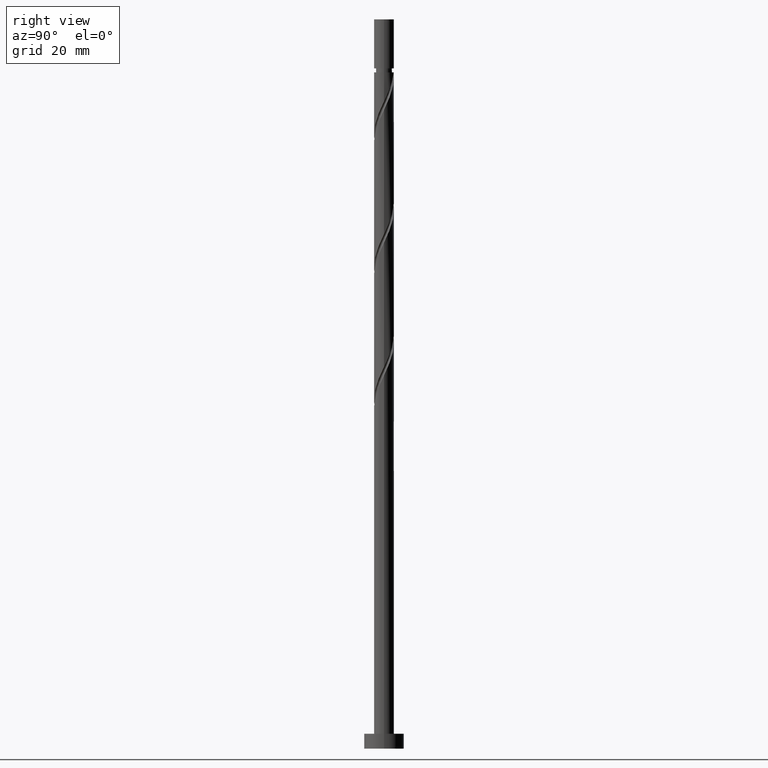
[diagram: clean part render]
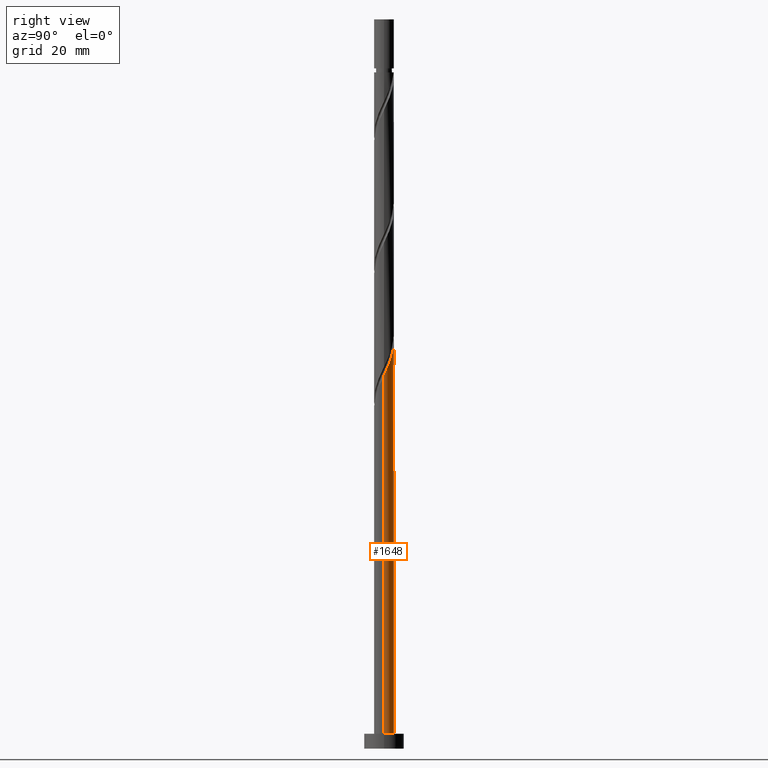
[diagram: same view with one face highlighted and labeled with its STEP entity id]
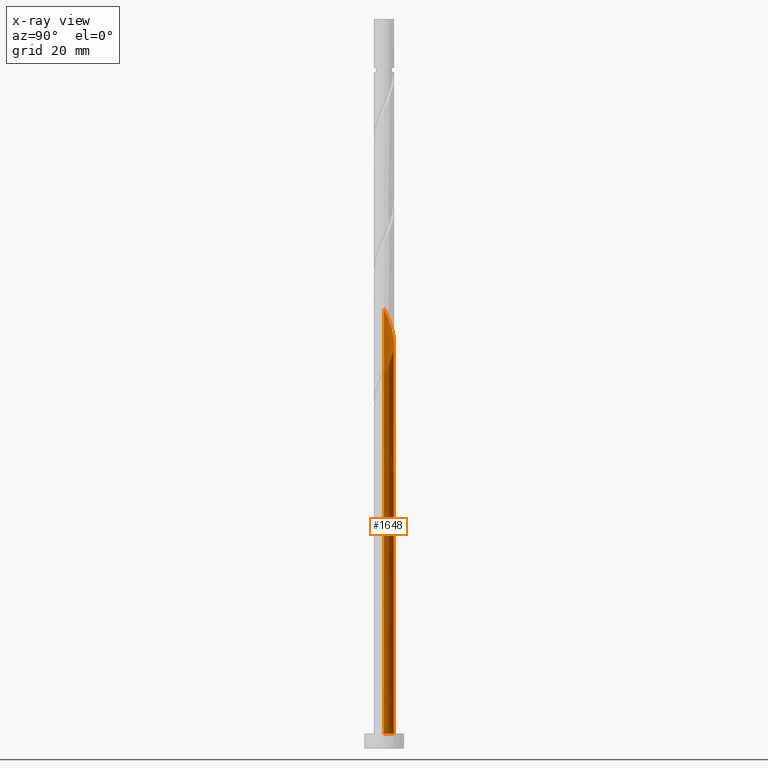
[diagram: x-ray of the same camera — body ghosted, the highlighted face saturated]
A machine part, right view. The second image highlights one B-rep face of the part: STEP entity #1648.
The next image is the same camera in x-ray: the body ghosted, the highlighted face saturated — about 0% of this face is hidden behind the body in this view.
In plain terms, the highlighted cylindrical surface (edge-blend (fillet) strip) has radius 2 mm, axis along (-0, -0, -1).
Its self-contained STEP definition (entity closure, byte-faithful):
#3 = CARTESIAN_POINT ( 'NONE',  ( 0.3979949748426483969, 1.959999999999999298, 55.84378238153818330 ) ) ;
#7 = AXIS2_PLACEMENT_3D ( 'NONE', #675, #49, #796 ) ;
#34 = ORIENTED_EDGE ( 'NONE', *, *, #282, .F. ) ;
#47 = ORIENTED_EDGE ( 'NONE', *, *, #341, .F. ) ;
#49 = DIRECTION ( 'NONE',  ( 0.000000000000000000, -0.000000000000000000, -1.000000000000000000 ) ) ;
#86 = CARTESIAN_POINT ( 'NONE',  ( -1.394470680848407529, 1.433684595806968387, 58.26802480578059118 ) ) ;
#92 = CARTESIAN_POINT ( 'NONE',  ( -0.9340691933046022521, 1.768478086411957584, 57.05590359365938724 ) ) ;
#94 = ORIENTED_EDGE ( 'NONE', *, *, #1174, .F. ) ;
#107 = LINE ( 'NONE', #480, #342 ) ;
#109 = VERTEX_POINT ( 'NONE', #1031 ) ;
#116 = CARTESIAN_POINT ( 'NONE',  ( -0.9340691933046022521, 1.768478086411957584, 83.72257026032605154 ) ) ;
#123 = CARTESIAN_POINT ( 'NONE',  ( 0.4568343776401070366, 1.968245701812304072, 80.69226723002302037 ) ) ;
#129 = CARTESIAN_POINT ( 'NONE',  ( -1.448427499289741682, 1.408810338760219993, 60.08620662396241130 ) ) ;
#135 = CARTESIAN_POINT ( 'NONE',  ( -0.9928482695149674075, 1.759812803970227879, 58.87408541184121447 ) ) ;
#146 = CIRCLE ( 'NONE', #1649, 2.000000000000000000 ) ;
#160 = CARTESIAN_POINT ( 'NONE',  ( -0.4568343776401058709, 1.968245701812301851, 57.66196419971999632 ) ) ;
#234 = CARTESIAN_POINT ( 'NONE',  ( 1.448427499289745235, 1.408810338760220882, 78.26802480578059829 ) ) ;
#252 = CARTESIAN_POINT ( 'NONE',  ( -1.883197487972274375, 0.7322950311120159927, 86.75287329062906849 ) ) ;
#262 = EDGE_CURVE ( 'NONE', #753, #1122, #146, .T. ) ;
#266 = DIRECTION ( 'NONE',  ( -1.000000000000000000, 0.000000000000000000, 0.000000000000000000 ) ) ;
#282 = EDGE_CURVE ( 'NONE', #1252, #1439, #107, .T. ) ;
#284 = CARTESIAN_POINT ( 'NONE',  ( -1.220637884402354656, 1.584311571365223825, 59.48014601790183065 ) ) ;
#324 = CARTESIAN_POINT ( 'NONE',  ( -2.000000000000003109, -9.647149353755143079E-16, 88.32766123557061633 ) ) ;
#332 = CARTESIAN_POINT ( 'NONE',  ( -1.948211798543802775, 0.4521844623765091664, 60.69226723002302037 ) ) ;
#341 = EDGE_CURVE ( 'NONE', #1246, #1252, #447, .T. ) ;
#342 = VECTOR ( 'NONE', #1135, 1000.000000000000000 ) ;
#346 = DIRECTION ( 'NONE',  ( -0.000000000000000000, -0.000000000000000000, -1.000000000000000000 ) ) ;
#348 = ORIENTED_EDGE ( 'NONE', *, *, #504, .T. ) ;
#381 = CARTESIAN_POINT ( 'NONE',  ( -2.000000000000003109, -9.647149353755143079E-16, 88.32766123557061633 ) ) ;
#444 = ORIENTED_EDGE ( 'NONE', *, *, #1403, .F. ) ;
#447 =( BOUNDED_CURVE ( )  B_SPLINE_CURVE ( 2, ( #627, #1510, #1381, #502, #1017, #860, #1533, #234, #1647, #487, #1399, #123, #1390, #1640, #1002, #734, #116, #1517, #1526, #1502, #743, #252, #759, #867, #381 ),
 .UNSPECIFIED., .F., .T. ) 
 B_SPLINE_CURVE_WITH_KNOTS ( ( 3, 2, 2, 2, 2, 2, 2, 2, 2, 2, 2, 2, 3 ),
 ( 0.1795252162417512731, 0.1818181818181817677, 0.1931818181818182323, 0.2045454545454545858, 0.2159090909090909394, 0.2272727272727272929, 0.2386363636363636465, 0.2500000000000000000, 0.2613636363636363535, 0.2727272727272727071, 0.2840909090909090606, 0.2954545454545454142, 0.3045252162417513286 ),
 .UNSPECIFIED. ) 
 CURVE ( )  GEOMETRIC_REPRESENTATION_ITEM ( )  RATIONAL_B_SPLINE_CURVE ( ( 0.9061101570135645655, 0.9072237824201467848, 0.9090909090909243817, 0.8998376744372265090, 0.9090909090909243817, 0.8998376744372265090, 0.9090909090909243817, 0.8998376744372265090, 0.9090909090909243817, 0.8998376744372265090, 0.9090909090909243817, 0.8998376744372265090, 0.9090909090909243817, 0.8998376744372265090, 0.9090909090909243817, 0.8998376744372265090, 0.9090909090909243817, 0.8998376744372265090, 0.9090909090909243817, 0.8998376744372265090, 0.9090909090909243817, 0.8998376744372265090, 0.9090909090909243817, 0.9017048011080039949, 0.9061101570135646766 ) ) 
 REPRESENTATION_ITEM ( '' )  );
#469 = CARTESIAN_POINT ( 'NONE',  ( -1.741900447066340174, 0.9827425057002956432, 59.48014601790180222 ) ) ;
#480 = CARTESIAN_POINT ( 'NONE',  ( -2.000000000000000000, 0.000000000000000000, 146.5000000000000000 ) ) ;
#487 = CARTESIAN_POINT ( 'NONE',  ( 0.9928482695149686288, 1.759812803970230322, 79.48014601790180222 ) ) ;
#502 = CARTESIAN_POINT ( 'NONE',  ( 1.980155124014554291, 0.4020876473299548337, 75.84378238153819041 ) ) ;
#504 = EDGE_CURVE ( 'NONE', #870, #546, #1009, .T. ) ;
#533 = CARTESIAN_POINT ( 'NONE',  ( -2.000000000000000000, 0.000000000000000000, 3.000000000000000000 ) ) ;
#546 = VERTEX_POINT ( 'NONE', #819 ) ;
#590 = CARTESIAN_POINT ( 'NONE',  ( -0.6798004310727961963, 1.902776961498554575, 56.44984298759878527 ) ) ;
#608 = EDGE_LOOP ( 'NONE', ( #47, #854, #946, #94, #444, #348, #614, #34 ) ) ;
#614 = ORIENTED_EDGE ( 'NONE', *, *, #1606, .F. ) ;
#626 = VECTOR ( 'NONE', #346, 1000.000000000000000 ) ;
#627 = CARTESIAN_POINT ( 'NONE',  ( 2.000000000000003109, 8.899308318580325832E-16, 74.99432790223728773 ) ) ;
#635 = CARTESIAN_POINT ( 'NONE',  ( -2.000000000000000000, 1.533074122108385710E-15, 63.35990352750574317 ) ) ;
#658 = CARTESIAN_POINT ( 'NONE',  ( -0.1703224295138028310, 1.992734370156874713, 57.05590359365941566 ) ) ;
#675 = CARTESIAN_POINT ( 'NONE',  ( 0.000000000000000000, 0.000000000000000000, 55.84378238153819751 ) ) ;
#703 = CARTESIAN_POINT ( 'NONE',  ( -1.188337955536408641, 1.634179211325361480, 57.66196419971999632 ) ) ;
#711 = CARTESIAN_POINT ( 'NONE',  ( 2.000000000000000000, 2.449293598294706414E-16, 3.000000000000000000 ) ) ;
#727 = CARTESIAN_POINT ( 'NONE',  ( -0.3979949748426477862, 1.960000000000003073, 55.84378238153818330 ) ) ;
#734 = CARTESIAN_POINT ( 'NONE',  ( -0.6798004310727961963, 1.902776961498554575, 83.11650965426545667 ) ) ;
#743 = CARTESIAN_POINT ( 'NONE',  ( -1.741900447066340174, 0.9827425057002956432, 86.14681268456845942 ) ) ;
#753 = VERTEX_POINT ( 'NONE', #711 ) ;
#759 = CARTESIAN_POINT ( 'NONE',  ( -1.948211798543802775, 0.4521844623765091664, 87.35893389668969178 ) ) ;
#768 = CARTESIAN_POINT ( 'NONE',  ( -1.980155124014550738, 0.4020876473299550002, 62.51044904820484049 ) ) ;
#796 = DIRECTION ( 'NONE',  ( -1.000000000000000000, 0.000000000000000000, 0.000000000000000000 ) ) ;
#819 = CARTESIAN_POINT ( 'NONE',  ( 0.3979949748426483969, 1.959999999999999520, 55.84378238153818330 ) ) ;
#844 = CARTESIAN_POINT ( 'NONE',  ( -1.883197487972274375, 0.7322950311120159927, 60.08620662396241130 ) ) ;
#854 = ORIENTED_EDGE ( 'NONE', *, *, #1360, .T. ) ;
#860 = CARTESIAN_POINT ( 'NONE',  ( 1.786663747202085650, 0.9436744384215539627, 77.05590359365940856 ) ) ;
#862 = CARTESIAN_POINT ( 'NONE',  ( -2.000000000000003109, -9.647149353755143079E-16, 61.66099456890395203 ) ) ;
#867 = CARTESIAN_POINT ( 'NONE',  ( -2.000000000000003109, 0.2290578547702459555, 87.84170128259933108 ) ) ;
#870 = VERTEX_POINT ( 'NONE', #1097 ) ;
#917 = CARTESIAN_POINT ( 'NONE',  ( -1.883409435608316862, 0.6728810428757543427, 61.90438844214425274 ) ) ;
#946 = ORIENTED_EDGE ( 'NONE', *, *, #262, .T. ) ;
#969 = CARTESIAN_POINT ( 'NONE',  ( 2.000000000000000000, 2.449293598294706414E-16, 146.5000000000000000 ) ) ;
#990 = LINE ( 'NONE', #969, #626 ) ;
#1002 = CARTESIAN_POINT ( 'NONE',  ( -0.3979949748426477862, 1.960000000000003073, 82.51044904820486181 ) ) ;
#1009 = CIRCLE ( 'NONE', #7, 2.000000000000000000 ) ;
#1011 = DIRECTION ( 'NONE',  ( 1.000000000000000000, 0.000000000000000000, 0.000000000000000000 ) ) ;
#1017 = CARTESIAN_POINT ( 'NONE',  ( 1.883409435608319304, 0.6728810428757542317, 76.44984298759877106 ) ) ;
#1026 = CARTESIAN_POINT ( 'NONE',  ( -2.000000000000000000, 0.05755105304764566998, 63.23780552278753220 ) ) ;
#1031 = CARTESIAN_POINT ( 'NONE',  ( -2.000000000000003109, -9.647149353755143079E-16, 61.66099456890395203 ) ) ;
#1041 = CARTESIAN_POINT ( 'NONE',  ( -1.996690616564939846, 0.1150068768444767603, 63.11650965426547799 ) ) ;
#1061 = DIRECTION ( 'NONE',  ( -0.000000000000000000, -0.000000000000000000, -1.000000000000000000 ) ) ;
#1093 = CARTESIAN_POINT ( 'NONE',  ( 2.000000000000003109, 8.899308318580325832E-16, 74.99432790223730194 ) ) ;
#1097 = CARTESIAN_POINT ( 'NONE',  ( -0.3979949748426477862, 1.960000000000003073, 55.84378238153818330 ) ) ;
#1122 = VERTEX_POINT ( 'NONE', #533 ) ;
#1135 = DIRECTION ( 'NONE',  ( -0.000000000000000000, -0.000000000000000000, -1.000000000000000000 ) ) ;
#1143 = CARTESIAN_POINT ( 'NONE',  ( 0.000000000000000000, 0.000000000000000000, 3.000000000000000000 ) ) ;
#1174 = EDGE_CURVE ( 'NONE', #109, #1122, #1292, .T. ) ;
#1180 = CARTESIAN_POINT ( 'NONE',  ( 0.1161895186125002227, 2.017223038501447796, 56.44984298759879948 ) ) ;
#1230 = AXIS2_PLACEMENT_3D ( 'NONE', #1543, #1289, #266 ) ;
#1238 = CARTESIAN_POINT ( 'NONE',  ( -1.600603406160406861, 1.233189980288575072, 58.87408541184122157 ) ) ;
#1246 = VERTEX_POINT ( 'NONE', #1093 ) ;
#1251 = CARTESIAN_POINT ( 'NONE',  ( -2.000000000000000000, 1.533074122108385710E-15, 63.35990352750574317 ) ) ;
#1252 = VERTEX_POINT ( 'NONE', #324 ) ;
#1283 = CARTESIAN_POINT ( 'NONE',  ( -1.786663747202082320, 0.9436744384215536297, 61.29832783608364366 ) ) ;
#1289 = DIRECTION ( 'NONE',  ( -0.000000000000000000, -0.000000000000000000, -1.000000000000000000 ) ) ;
#1292 = LINE ( 'NONE', #1590, #1651 ) ;
#1305 = CARTESIAN_POINT ( 'NONE',  ( -0.7248413235775366115, 1.864029252891264754, 58.26802480578061250 ) ) ;
#1318 =( BOUNDED_CURVE ( )  B_SPLINE_CURVE ( 2, ( #635, #1026, #1041, #768, #917, #1283, #1415, #129, #284, #135, #1305, #160, #658, #1180, #3 ),
 .UNSPECIFIED., .F., .F. ) 
 B_SPLINE_CURVE_WITH_KNOTS ( ( 3, 2, 2, 2, 2, 2, 2, 3 ),
 ( 0.9295252162417513286, 0.9318181818181817677, 0.9431818181818182323, 0.9545454545454545858, 0.9659090909090909394, 0.9772727272727272929, 0.9886363636363636465, 1.000000000000000000 ),
 .UNSPECIFIED. ) 
 CURVE ( )  GEOMETRIC_REPRESENTATION_ITEM ( )  RATIONAL_B_SPLINE_CURVE ( ( 0.9061101570135584593, 0.9072237824201405676, 0.9090909090909180534, 0.8998376744372204028, 0.9090909090909180534, 0.8998376744372204028, 0.9090909090909180534, 0.8998376744372204028, 0.9090909090909180534, 0.8998376744372204028, 0.9090909090909180534, 0.8998376744372204028, 0.9090909090909180534, 0.8998376744372204028, 0.9090909090909180534 ) ) 
 REPRESENTATION_ITEM ( '' )  );
#1360 = EDGE_CURVE ( 'NONE', #1246, #753, #990, .T. ) ;
#1365 = CARTESIAN_POINT ( 'NONE',  ( -2.000000000000003109, 0.2290578547702467882, 61.17503461593265257 ) ) ;
#1381 = CARTESIAN_POINT ( 'NONE',  ( 1.996690616564942955, 0.1150068768444761219, 75.23772177547758133 ) ) ;
#1390 = CARTESIAN_POINT ( 'NONE',  ( 0.1703224295138035527, 1.992734370156876489, 81.29832783608361524 ) ) ;
#1399 = CARTESIAN_POINT ( 'NONE',  ( 0.7248413235775373886, 1.864029252891266530, 80.08620662396242551 ) ) ;
#1403 = EDGE_CURVE ( 'NONE', #870, #109, #1551, .T. ) ;
#1415 = CARTESIAN_POINT ( 'NONE',  ( -1.617545623245912001, 1.176242388590886589, 60.69226723002303459 ) ) ;
#1439 = VERTEX_POINT ( 'NONE', #1251 ) ;
#1442 = CYLINDRICAL_SURFACE ( 'NONE', #1230, 2.000000000000000000 ) ;
#1502 = CARTESIAN_POINT ( 'NONE',  ( -1.600603406160406861, 1.233189980288575072, 85.54075207850787876 ) ) ;
#1510 = CARTESIAN_POINT ( 'NONE',  ( 2.000000000000003553, 0.05755105304764365770, 75.11642590695552713 ) ) ;
#1517 = CARTESIAN_POINT ( 'NONE',  ( -1.188337955536408641, 1.634179211325361480, 84.32863086638664640 ) ) ;
#1526 = CARTESIAN_POINT ( 'NONE',  ( -1.394470680848407529, 1.433684595806968387, 84.93469147244722706 ) ) ;
#1533 = CARTESIAN_POINT ( 'NONE',  ( 1.617545623245914665, 1.176242388590887478, 77.66196419971998921 ) ) ;
#1543 = CARTESIAN_POINT ( 'NONE',  ( 0.000000000000000000, 0.000000000000000000, 146.5000000000000000 ) ) ;
#1551 =( BOUNDED_CURVE ( )  B_SPLINE_CURVE ( 2, ( #727, #590, #92, #703, #86, #1238, #469, #844, #332, #1365, #862 ),
 .UNSPECIFIED., .F., .F. ) 
 B_SPLINE_CURVE_WITH_KNOTS ( ( 3, 2, 2, 2, 2, 3 ),
 ( 0.000000000000000000, 0.01136363636363635354, 0.02272727272727270709, 0.03409090909090906063, 0.04545454545454541417, 0.05452521624175129394 ),
 .UNSPECIFIED. ) 
 CURVE ( )  GEOMETRIC_REPRESENTATION_ITEM ( )  RATIONAL_B_SPLINE_CURVE ( ( 0.9090909090909243817, 0.8998376744372265090, 0.9090909090909243817, 0.8998376744372265090, 0.9090909090909243817, 0.8998376744372265090, 0.9090909090909243817, 0.8998376744372265090, 0.9090909090909243817, 0.9017048011080039949, 0.9061101570135646766 ) ) 
 REPRESENTATION_ITEM ( '' )  );
#1568 = FACE_OUTER_BOUND ( 'NONE', #608, .T. ) ;
#1590 = CARTESIAN_POINT ( 'NONE',  ( -2.000000000000000000, 0.000000000000000000, 146.5000000000000000 ) ) ;
#1606 = EDGE_CURVE ( 'NONE', #1439, #546, #1318, .T. ) ;
#1634 = DIRECTION ( 'NONE',  ( 0.000000000000000000, 0.000000000000000000, 1.000000000000000000 ) ) ;
#1640 = CARTESIAN_POINT ( 'NONE',  ( -0.1161895186124997786, 2.017223038501451349, 81.90438844214419589 ) ) ;
#1647 = CARTESIAN_POINT ( 'NONE',  ( 1.220637884402356432, 1.584311571365226046, 78.87408541184119315 ) ) ;
#1648 = ADVANCED_FACE ( 'NONE', ( #1568 ), #1442, .T. ) ;
#1649 = AXIS2_PLACEMENT_3D ( 'NONE', #1143, #1634, #1011 ) ;
#1651 = VECTOR ( 'NONE', #1061, 1000.000000000000000 ) ;